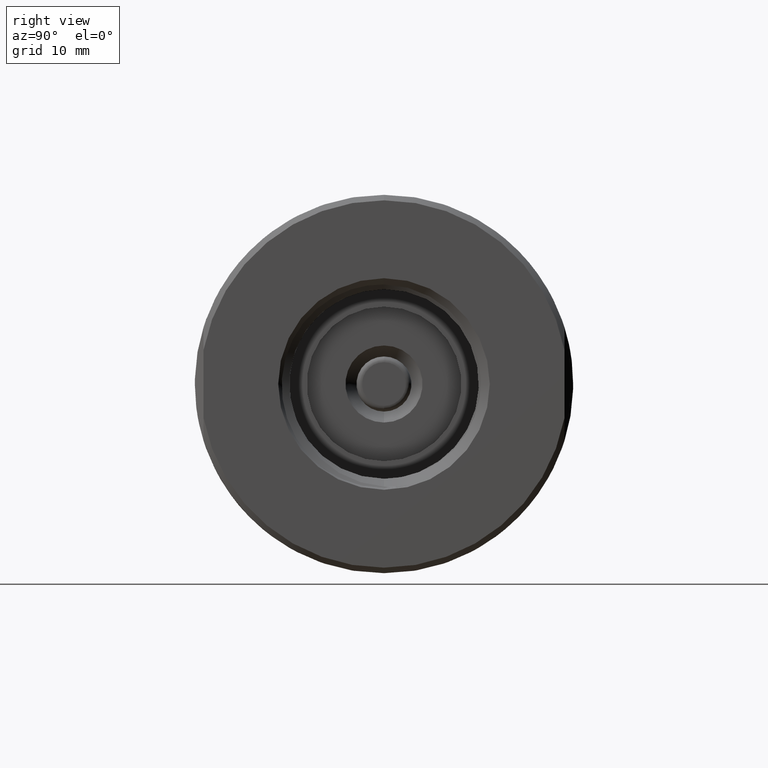
[diagram: clean part render]
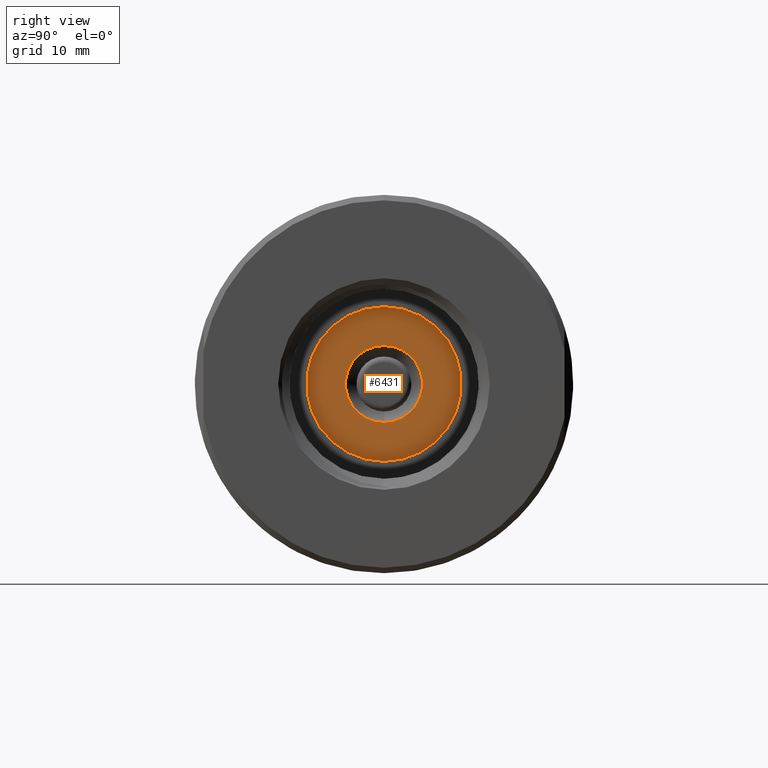
[diagram: same view with one face highlighted and labeled with its STEP entity id]
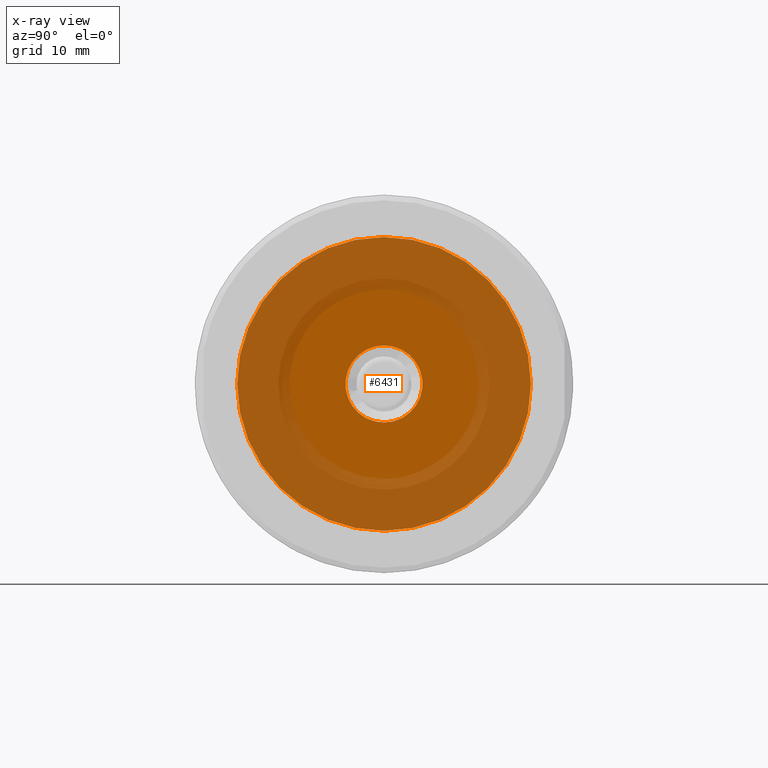
[diagram: x-ray of the same camera — body ghosted, the highlighted face saturated]
A machine part, right view. The second image highlights one B-rep face of the part: STEP entity #6431.
The next image is the same camera in x-ray: the body ghosted, the highlighted face saturated — about 63% of this face is hidden behind the body in this view.
In plain terms, the highlighted planar face has unit normal (-1, 0, -0).
Its self-contained STEP definition (entity closure, byte-faithful):
#293 = CARTESIAN_POINT ( 'NONE',  ( 0.4687499999999999445, 0.0000000000000000000, 0.0000000000000000000 ) ) ;
#350 = DIRECTION ( 'NONE',  ( -1.000000000000000000, -0.0000000000000000000, -0.0000000000000000000 ) ) ;
#390 = DIRECTION ( 'NONE',  ( 0.0000000000000000000, 0.0000000000000000000, 1.000000000000000000 ) ) ;
#1623 = DIRECTION ( 'NONE',  ( -1.000000000000000000, -0.0000000000000000000, -0.0000000000000000000 ) ) ;
#1627 = ORIENTED_EDGE ( 'NONE', *, *, #9606, .T. ) ;
#2072 = CARTESIAN_POINT ( 'NONE',  ( 0.4687500000000000000, 0.5337500000000000577, 0.0000000000000000000 ) ) ;
#2941 = FACE_BOUND ( 'NONE', #4558, .T. ) ;
#3032 = AXIS2_PLACEMENT_3D ( 'NONE', #6411, #1623, #9280 ) ;
#3358 = CARTESIAN_POINT ( 'NONE',  ( 0.4687500000000001110, 0.0000000000000000000, 0.0000000000000000000 ) ) ;
#3812 = CARTESIAN_POINT ( 'NONE',  ( 0.4687499999999999445, 6.903946330193202901E-17, -0.5337500000000000577 ) ) ;
#3957 = VERTEX_POINT ( 'NONE', #10811 ) ;
#4558 = EDGE_LOOP ( 'NONE', ( #1627, #11612 ) ) ;
#5007 = DIRECTION ( 'NONE',  ( 0.0000000000000000000, 0.0000000000000000000, 1.000000000000000000 ) ) ;
#5166 = DIRECTION ( 'NONE',  ( -1.000000000000000000, -0.0000000000000000000, -0.0000000000000000000 ) ) ;
#5856 = DIRECTION ( 'NONE',  ( -0.0000000000000000000, 0.0000000000000000000, 1.000000000000000000 ) ) ;
#5973 = AXIS2_PLACEMENT_3D ( 'NONE', #2072, #11592, #5856 ) ;
#6170 = EDGE_CURVE ( 'NONE', #8698, #11132, #7104, .T. ) ;
#6174 = DIRECTION ( 'NONE',  ( -1.000000000000000000, -0.0000000000000000000, -0.0000000000000000000 ) ) ;
#6353 = EDGE_LOOP ( 'NONE', ( #8056, #6819 ) ) ;
#6411 = CARTESIAN_POINT ( 'NONE',  ( 0.4687500000000001110, 0.0000000000000000000, 0.0000000000000000000 ) ) ;
#6431 = ADVANCED_FACE ( 'NONE', ( #7796, #2941 ), #10595, .F. ) ;
#6794 = VERTEX_POINT ( 'NONE', #9098 ) ;
#6814 = CIRCLE ( 'NONE', #3032, 0.1400000000000000133 ) ;
#6819 = ORIENTED_EDGE ( 'NONE', *, *, #6170, .F. ) ;
#7104 = CIRCLE ( 'NONE', #12319, 0.5337500000000000577 ) ;
#7120 = DIRECTION ( 'NONE',  ( 0.0000000000000000000, 0.0000000000000000000, 1.000000000000000000 ) ) ;
#7599 = CIRCLE ( 'NONE', #9978, 0.5337500000000000577 ) ;
#7796 = FACE_OUTER_BOUND ( 'NONE', #6353, .T. ) ;
#7980 = CARTESIAN_POINT ( 'NONE',  ( 0.4687499999999999445, 0.0000000000000000000, 0.0000000000000000000 ) ) ;
#8056 = ORIENTED_EDGE ( 'NONE', *, *, #8096, .F. ) ;
#8096 = EDGE_CURVE ( 'NONE', #11132, #8698, #7599, .T. ) ;
#8698 = VERTEX_POINT ( 'NONE', #3812 ) ;
#8752 = EDGE_CURVE ( 'NONE', #3957, #6794, #9780, .T. ) ;
#8980 = AXIS2_PLACEMENT_3D ( 'NONE', #3358, #5166, #390 ) ;
#9098 = CARTESIAN_POINT ( 'NONE',  ( 0.4687500000000001110, 0.0000000000000000000, -0.1400000000000000133 ) ) ;
#9280 = DIRECTION ( 'NONE',  ( 0.0000000000000000000, 0.0000000000000000000, 1.000000000000000000 ) ) ;
#9606 = EDGE_CURVE ( 'NONE', #6794, #3957, #6814, .T. ) ;
#9780 = CIRCLE ( 'NONE', #8980, 0.1400000000000000133 ) ;
#9978 = AXIS2_PLACEMENT_3D ( 'NONE', #293, #350, #5007 ) ;
#10595 = PLANE ( 'NONE',  #5973 ) ;
#10718 = CARTESIAN_POINT ( 'NONE',  ( 0.4687499999999999445, 0.0000000000000000000, 0.5337500000000000577 ) ) ;
#10811 = CARTESIAN_POINT ( 'NONE',  ( 0.4687500000000001110, 1.714505518806294700E-17, 0.1400000000000000133 ) ) ;
#11132 = VERTEX_POINT ( 'NONE', #10718 ) ;
#11592 = DIRECTION ( 'NONE',  ( -1.000000000000000000, 0.0000000000000000000, -0.0000000000000000000 ) ) ;
#11612 = ORIENTED_EDGE ( 'NONE', *, *, #8752, .T. ) ;
#12319 = AXIS2_PLACEMENT_3D ( 'NONE', #7980, #6174, #7120 ) ;